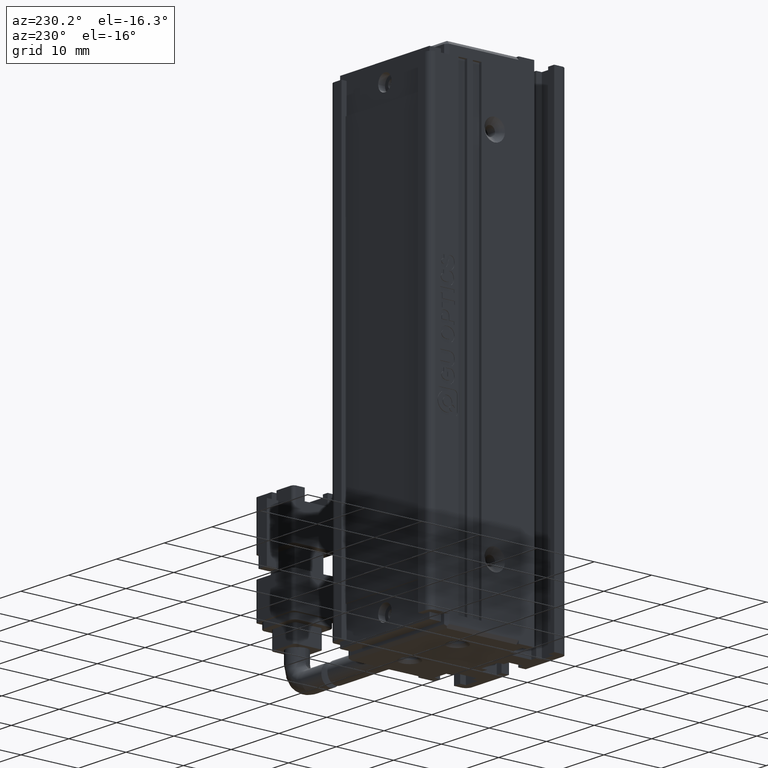
[diagram: clean part render]
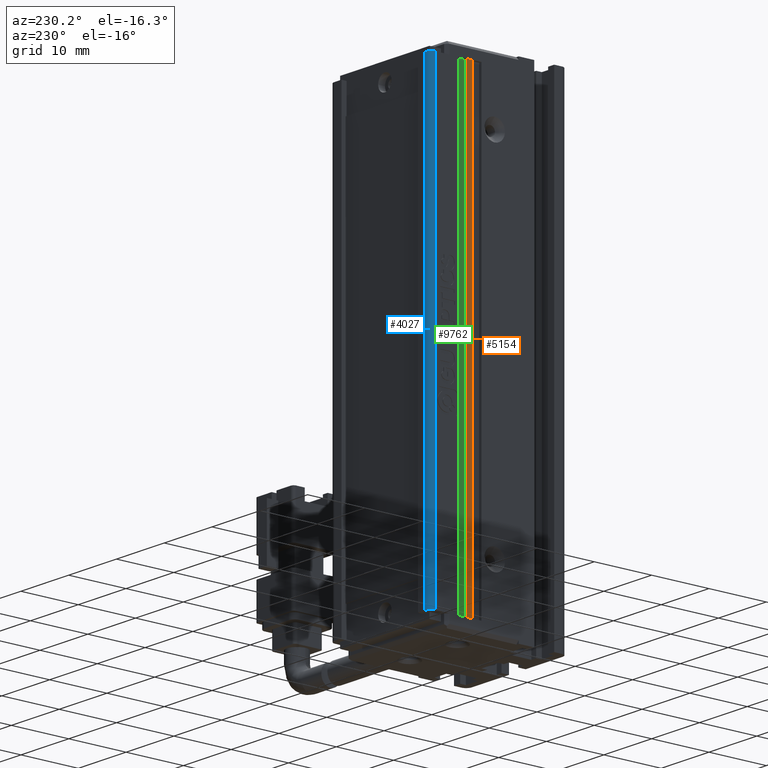
[diagram: same view with three faces highlighted in distinct colors, each labeled with its STEP entity id]
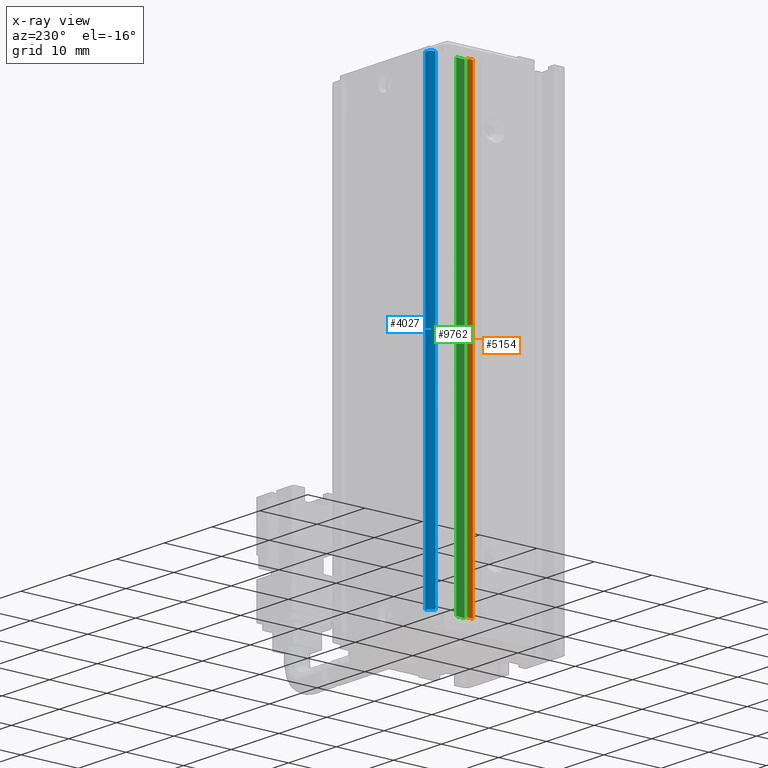
[diagram: x-ray of the same camera — body ghosted, the three highlighted faces saturated]
A machine part, auxiliary view with three faces highlighted in distinct colors.
The next image is the same camera in x-ray (body ghosted, the three faces saturated) — at least one of them is partly hidden behind the body in this view.
Their STEP definitions:

[orange] entity #5154 — the highlighted planar face has unit normal (-1, -0, 0).
#1038 = LINE ( 'NONE', #16818, #23677 ) ;
#1716 = AXIS2_PLACEMENT_3D ( 'NONE', #10668, #6125, #26934 ) ;
#3079 = DIRECTION ( 'NONE',  ( 7.380418287155808400E-032, -1.000000000000000000, 0.0000000000000000000 ) ) ;
#3131 = DIRECTION ( 'NONE',  ( 0.0000000000000000000, -0.0000000000000000000, 1.000000000000000000 ) ) ;
#5005 = DIRECTION ( 'NONE',  ( 0.0000000000000000000, -0.0000000000000000000, -1.000000000000000000 ) ) ;
#5154 = ADVANCED_FACE ( 'NONE', ( #21921 ), #17387, .T. ) ;
#6125 = DIRECTION ( 'NONE',  ( -1.000000000000000000, -7.380418287155808400E-032, 0.0000000000000000000 ) ) ;
#7898 = CARTESIAN_POINT ( 'NONE',  ( 30.42537974683542100, 7.083797468354435800, -76.00000000000001400 ) ) ;
#9463 = EDGE_LOOP ( 'NONE', ( #24157, #26264, #10641, #20725 ) ) ;
#9508 = EDGE_CURVE ( 'NONE', #20335, #10177, #26966, .T. ) ;
#10177 = VERTEX_POINT ( 'NONE', #20420 ) ;
#10641 = ORIENTED_EDGE ( 'NONE', *, *, #29381, .T. ) ;
#10668 = CARTESIAN_POINT ( 'NONE',  ( 30.42537974683542100, 7.083797468354435800, -74.00000000000000000 ) ) ;
#13874 = CARTESIAN_POINT ( 'NONE',  ( 30.42537974683542500, 28.49073232304836600, -74.00000000000000000 ) ) ;
#14182 = VECTOR ( 'NONE', #28894, 1000.000000000000000 ) ;
#14253 = CARTESIAN_POINT ( 'NONE',  ( 30.42537974683542100, 27.49073232304837300, -154.0000000000000000 ) ) ;
#14641 = VECTOR ( 'NONE', #3131, 1000.000000000000000 ) ;
#16174 = VECTOR ( 'NONE', #5005, 1000.000000000000000 ) ;
#16818 = CARTESIAN_POINT ( 'NONE',  ( 30.42537974683542100, 7.083797468354435800, -154.0000000000000000 ) ) ;
#17387 = PLANE ( 'NONE',  #1716 ) ;
#17660 = LINE ( 'NONE', #13874, #16174 ) ;
#18397 = VERTEX_POINT ( 'NONE', #27419 ) ;
#20335 = VERTEX_POINT ( 'NONE', #14253 ) ;
#20420 = CARTESIAN_POINT ( 'NONE',  ( 30.42537974683542100, 27.49073232304837300, -76.00000000000001400 ) ) ;
#20432 = VERTEX_POINT ( 'NONE', #20842 ) ;
#20725 = ORIENTED_EDGE ( 'NONE', *, *, #27799, .T. ) ;
#20842 = CARTESIAN_POINT ( 'NONE',  ( 30.42537974683542100, 28.49073232304836600, -76.00000000000001400 ) ) ;
#20981 = EDGE_CURVE ( 'NONE', #18397, #20335, #1038, .T. ) ;
#21921 = FACE_OUTER_BOUND ( 'NONE', #9463, .T. ) ;
#22505 = LINE ( 'NONE', #7898, #14182 ) ;
#23677 = VECTOR ( 'NONE', #3079, 1000.000000000000000 ) ;
#23811 = CARTESIAN_POINT ( 'NONE',  ( 30.42537974683542500, 27.49073232304837300, -74.00000000000001400 ) ) ;
#24157 = ORIENTED_EDGE ( 'NONE', *, *, #20981, .T. ) ;
#26264 = ORIENTED_EDGE ( 'NONE', *, *, #9508, .T. ) ;
#26934 = DIRECTION ( 'NONE',  ( 7.380418287155808400E-032, -1.000000000000000000, 0.0000000000000000000 ) ) ;
#26966 = LINE ( 'NONE', #23811, #14641 ) ;
#27419 = CARTESIAN_POINT ( 'NONE',  ( 30.42537974683542100, 28.49073232304836600, -154.0000000000000000 ) ) ;
#27799 = EDGE_CURVE ( 'NONE', #20432, #18397, #17660, .T. ) ;
#28894 = DIRECTION ( 'NONE',  ( -7.380418287155808400E-032, 1.000000000000000000, -0.0000000000000000000 ) ) ;
#29381 = EDGE_CURVE ( 'NONE', #10177, #20432, #22505, .T. ) ;

[blue] entity #4027 — the highlighted cylindrical surface (edge-blend (fillet) strip) has radius 1 mm, axis along (0, 0, -1).
#1758 = DIRECTION ( 'NONE',  ( -1.000000000000000000, 0.0000000000000000000, 0.0000000000000000000 ) ) ;
#2032 = CIRCLE ( 'NONE', #8168, 1.000000000000000900 ) ;
#2130 = DIRECTION ( 'NONE',  ( -7.888609052210118100E-031, 3.421138828918011200E-046, -1.000000000000000000 ) ) ;
#2360 = AXIS2_PLACEMENT_3D ( 'NONE', #21427, #14452, #12260 ) ;
#4027 = ADVANCED_FACE ( 'NONE', ( #8385 ), #8006, .T. ) ;
#5427 = VECTOR ( 'NONE', #17322, 1000.000000000000000 ) ;
#6467 = VERTEX_POINT ( 'NONE', #7537 ) ;
#7360 = ORIENTED_EDGE ( 'NONE', *, *, #25540, .T. ) ;
#7537 = CARTESIAN_POINT ( 'NONE',  ( 31.42537974683542100, 34.99073232304836300, -76.00000000000001400 ) ) ;
#8006 = CYLINDRICAL_SURFACE ( 'NONE', #21074, 1.000000000000000900 ) ;
#8168 = AXIS2_PLACEMENT_3D ( 'NONE', #13008, #22391, #10793 ) ;
#8385 = FACE_OUTER_BOUND ( 'NONE', #11637, .T. ) ;
#8561 = CARTESIAN_POINT ( 'NONE',  ( 31.42537974683542100, 33.99073232304836300, -74.00000000000001400 ) ) ;
#10498 = LINE ( 'NONE', #27700, #22034 ) ;
#10719 = DIRECTION ( 'NONE',  ( 0.0000000000000000000, 0.0000000000000000000, -1.000000000000000000 ) ) ;
#10793 = DIRECTION ( 'NONE',  ( -1.000000000000000000, 0.0000000000000000000, 0.0000000000000000000 ) ) ;
#10858 = VERTEX_POINT ( 'NONE', #25831 ) ;
#11637 = EDGE_LOOP ( 'NONE', ( #17898, #24815, #11994, #7360 ) ) ;
#11911 = CARTESIAN_POINT ( 'NONE',  ( 30.42537974683542500, 33.99073232304836300, -76.00000000000001400 ) ) ;
#11994 = ORIENTED_EDGE ( 'NONE', *, *, #23741, .T. ) ;
#12260 = DIRECTION ( 'NONE',  ( -1.000000000000000000, 0.0000000000000000000, 0.0000000000000000000 ) ) ;
#13008 = CARTESIAN_POINT ( 'NONE',  ( 31.42537974683542100, 33.99073232304836300, -76.00000000000001400 ) ) ;
#14149 = EDGE_CURVE ( 'NONE', #25907, #25045, #10498, .T. ) ;
#14452 = DIRECTION ( 'NONE',  ( -0.0000000000000000000, -0.0000000000000000000, 1.000000000000000000 ) ) ;
#15789 = EDGE_CURVE ( 'NONE', #10858, #25045, #24209, .T. ) ;
#17322 = DIRECTION ( 'NONE',  ( 0.0000000000000000000, 0.0000000000000000000, -1.000000000000000000 ) ) ;
#17898 = ORIENTED_EDGE ( 'NONE', *, *, #15789, .T. ) ;
#21074 = AXIS2_PLACEMENT_3D ( 'NONE', #8561, #10719, #1758 ) ;
#21427 = CARTESIAN_POINT ( 'NONE',  ( 31.42537974683542100, 33.99073232304836300, -154.0000000000000000 ) ) ;
#22034 = VECTOR ( 'NONE', #2130, 1000.000000000000000 ) ;
#22315 = LINE ( 'NONE', #28843, #5427 ) ;
#22338 = CARTESIAN_POINT ( 'NONE',  ( 30.42537974683542500, 33.99073232304836300, -154.0000000000000000 ) ) ;
#22391 = DIRECTION ( 'NONE',  ( 0.0000000000000000000, 0.0000000000000000000, -1.000000000000000000 ) ) ;
#23741 = EDGE_CURVE ( 'NONE', #25907, #6467, #2032, .T. ) ;
#24209 = CIRCLE ( 'NONE', #2360, 1.000000000000000900 ) ;
#24815 = ORIENTED_EDGE ( 'NONE', *, *, #14149, .F. ) ;
#25045 = VERTEX_POINT ( 'NONE', #22338 ) ;
#25540 = EDGE_CURVE ( 'NONE', #6467, #10858, #22315, .T. ) ;
#25831 = CARTESIAN_POINT ( 'NONE',  ( 31.42537974683542100, 34.99073232304836300, -154.0000000000000000 ) ) ;
#25907 = VERTEX_POINT ( 'NONE', #11911 ) ;
#27700 = CARTESIAN_POINT ( 'NONE',  ( 30.42537974683542900, 33.99073232304836300, -74.00000000000000000 ) ) ;
#28843 = CARTESIAN_POINT ( 'NONE',  ( 31.42537974683542100, 34.99073232304836300, -74.00000000000001400 ) ) ;

[green] entity #9762 — the highlighted planar face has unit normal (1, 0, 0).
#653 = FACE_OUTER_BOUND ( 'NONE', #22801, .T. ) ;
#695 = EDGE_CURVE ( 'NONE', #15974, #27913, #23991, .T. ) ;
#1160 = VECTOR ( 'NONE', #10312, 1000.000000000000000 ) ;
#2379 = DIRECTION ( 'NONE',  ( -7.380418287155808400E-032, 1.000000000000000000, 0.0000000000000000000 ) ) ;
#2612 = LINE ( 'NONE', #28644, #1160 ) ;
#4599 = ORIENTED_EDGE ( 'NONE', *, *, #24854, .F. ) ;
#4646 = DIRECTION ( 'NONE',  ( 7.380418287155808400E-032, -1.000000000000000000, -0.0000000000000000000 ) ) ;
#4756 = ORIENTED_EDGE ( 'NONE', *, *, #695, .T. ) ;
#5428 = LINE ( 'NONE', #18308, #15102 ) ;
#6659 = ORIENTED_EDGE ( 'NONE', *, *, #16430, .F. ) ;
#6702 = DIRECTION ( 'NONE',  ( 1.000000000000000000, 7.380418287155808400E-032, 0.0000000000000000000 ) ) ;
#6959 = LINE ( 'NONE', #25775, #11581 ) ;
#9762 = ADVANCED_FACE ( 'NONE', ( #653 ), #10566, .F. ) ;
#10312 = DIRECTION ( 'NONE',  ( -0.0000000000000000000, 0.0000000000000000000, -1.000000000000000000 ) ) ;
#10566 = PLANE ( 'NONE',  #20856 ) ;
#10895 = CARTESIAN_POINT ( 'NONE',  ( 30.92537974683542100, 28.49073232304836600, -154.0000000000000000 ) ) ;
#10935 = ORIENTED_EDGE ( 'NONE', *, *, #18985, .F. ) ;
#11581 = VECTOR ( 'NONE', #15267, 1000.000000000000000 ) ;
#12060 = VECTOR ( 'NONE', #15259, 1000.000000000000000 ) ;
#12087 = CARTESIAN_POINT ( 'NONE',  ( 30.92537974683542100, 29.99073232304837000, -153.9999999999999700 ) ) ;
#15102 = VECTOR ( 'NONE', #4646, 1000.000000000000000 ) ;
#15259 = DIRECTION ( 'NONE',  ( -0.0000000000000000000, -0.0000000000000000000, -1.000000000000000000 ) ) ;
#15267 = DIRECTION ( 'NONE',  ( -7.380418287155808400E-032, 1.000000000000000000, 0.0000000000000000000 ) ) ;
#15974 = VERTEX_POINT ( 'NONE', #28565 ) ;
#16430 = EDGE_CURVE ( 'NONE', #22116, #25732, #2612, .T. ) ;
#18308 = CARTESIAN_POINT ( 'NONE',  ( 30.92537974683542100, 7.083797468354435800, -76.00000000000001400 ) ) ;
#18985 = EDGE_CURVE ( 'NONE', #15974, #22116, #5428, .T. ) ;
#20643 = CARTESIAN_POINT ( 'NONE',  ( 30.92537974683542100, 7.083797468354435800, -74.00000000000001400 ) ) ;
#20856 = AXIS2_PLACEMENT_3D ( 'NONE', #20643, #6702, #2379 ) ;
#22116 = VERTEX_POINT ( 'NONE', #24776 ) ;
#22801 = EDGE_LOOP ( 'NONE', ( #10935, #4756, #4599, #6659 ) ) ;
#23991 = LINE ( 'NONE', #28964, #12060 ) ;
#24776 = CARTESIAN_POINT ( 'NONE',  ( 30.92537974683542100, 28.49073232304836600, -76.00000000000001400 ) ) ;
#24854 = EDGE_CURVE ( 'NONE', #25732, #27913, #6959, .T. ) ;
#25732 = VERTEX_POINT ( 'NONE', #10895 ) ;
#25775 = CARTESIAN_POINT ( 'NONE',  ( 30.92537974683542100, 7.083797468354435800, -154.0000000000000000 ) ) ;
#27913 = VERTEX_POINT ( 'NONE', #12087 ) ;
#28565 = CARTESIAN_POINT ( 'NONE',  ( 30.92537974683542100, 29.99073232304837000, -76.00000000000001400 ) ) ;
#28644 = CARTESIAN_POINT ( 'NONE',  ( 30.92537974683542100, 28.49073232304836600, -74.00000000000001400 ) ) ;
#28964 = CARTESIAN_POINT ( 'NONE',  ( 30.92537974683542100, 29.99073232304837000, -74.00000000000001400 ) ) ;